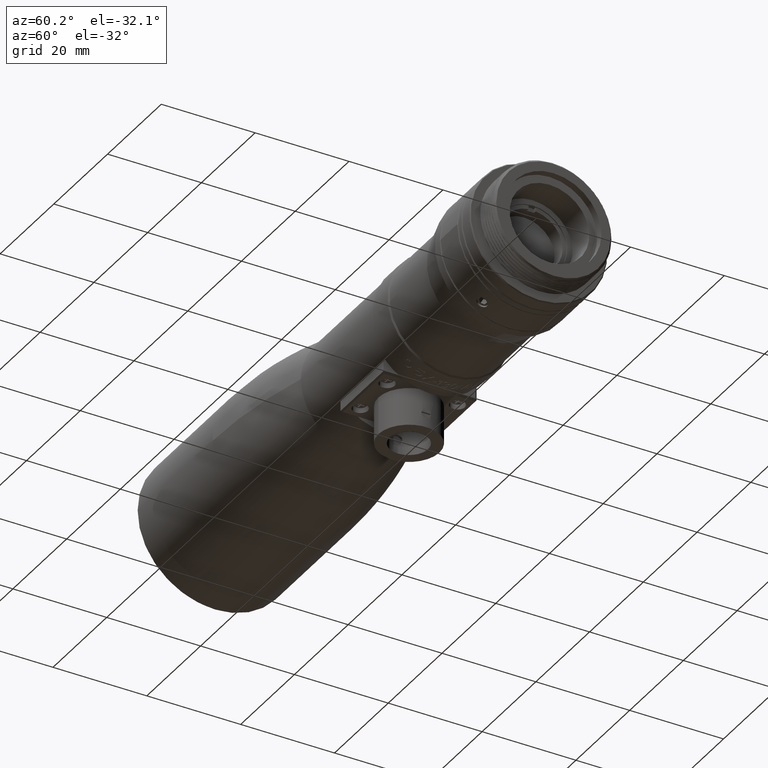
[diagram: clean part render]
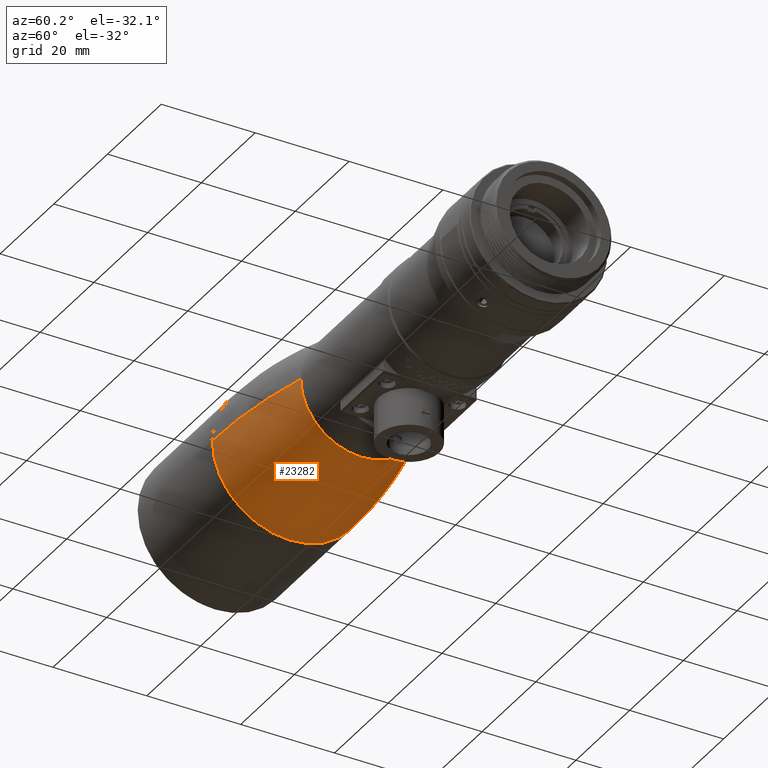
[diagram: same view with one face highlighted and labeled with its STEP entity id]
A machine part, auxiliary view. The second image highlights one B-rep face of the part: STEP entity #23282.
In plain terms, the highlighted face is a freeform B-spline surface patch.
Its self-contained STEP definition (entity closure, byte-faithful):
#20 = CARTESIAN_POINT ( 'NONE',  ( -8.756185135893478133, -15.32402583809649776, 0.2888167847728006499 ) ) ;
#272 = AXIS2_PLACEMENT_3D ( 'NONE', #15742, #10527, #25546 ) ;
#1800 = DIRECTION ( 'NONE',  ( 2.697324574236714523E-13, -8.992583322630788348E-06, 0.9999999999595667877 ) ) ;
#2226 = DIRECTION ( 'NONE',  ( 1.000000000000000000, 0.000000000000000000, -2.697785781550014780E-13 ) ) ;
#2235 = AXIS2_PLACEMENT_3D ( 'NONE', #19603, #1800, #29392 ) ;
#2468 = FACE_OUTER_BOUND ( 'NONE', #16575, .T. ) ;
#2543 = ORIENTED_EDGE ( 'NONE', *, *, #8457, .F. ) ;
#3807 = CIRCLE ( 'NONE', #2235, 104.3557142859954325 ) ;
#4131 = EDGE_CURVE ( 'NONE', #26897, #16132, #12127, .T. ) ;
#4274 = AXIS2_PLACEMENT_3D ( 'NONE', #21988, #2226, #9427 ) ;
#4435 = CARTESIAN_POINT ( 'NONE',  ( -17.73994872613297602, 16.68206852584769706, -9.497683224391783696 ) ) ;
#5786 = EDGE_CURVE ( 'NONE', #31032, #26897, #15229, .T. ) ;
#5858 = CARTESIAN_POINT ( 'NONE',  ( -26.80000000004445226, 0.000000000000000000, 0.000000000000000000 ) ) ;
#7204 = CARTESIAN_POINT ( 'NONE',  ( -17.73994872613033280, 16.49706600851910565, 0.3111480516158111609 ) ) ;
#7434 = ORIENTED_EDGE ( 'NONE', *, *, #21754, .T. ) ;
#7650 = VERTEX_POINT ( 'NONE', #29074 ) ;
#8457 = EDGE_CURVE ( 'NONE', #16132, #15035, #3807, .T. ) ;
#9207 = AXIS2_PLACEMENT_3D ( 'NONE', #18179, #15714, #10974 ) ;
#9427 = DIRECTION ( 'NONE',  ( -2.697785781550014780E-13, 0.000000000000000000, -1.000000000000000000 ) ) ;
#9661 = CARTESIAN_POINT ( 'NONE',  ( -8.756185135895927729, 15.49586962781681088, -8.822338835467260054 ) ) ;
#9697 = ORIENTED_EDGE ( 'NONE', *, *, #4131, .F. ) ;
#9825 = CARTESIAN_POINT ( 'NONE',  ( 1.206386617625262911E-11, 7.729632223316386330, -12.99994786825178572 ) ) ;
#9986 = CARTESIAN_POINT ( 'NONE',  ( 1.206385211230918476E-11, 8.767768979434767992E-05, -12.99999999968323650 ) ) ;
#10256 = CIRCLE ( 'NONE', #9207, 104.3557142859954325 ) ;
#10261 = CARTESIAN_POINT ( 'NONE',  ( 0.000000000000000000, 0.000000000000000000, -9.621682753383029286E-14 ) ) ;
#10527 = DIRECTION ( 'NONE',  ( 1.000000000000000000, 0.000000000000000000, 0.000000000000000000 ) ) ;
#10600 = AXIS2_PLACEMENT_3D ( 'NONE', #5858, #21528, #24450 ) ;
#10974 = DIRECTION ( 'NONE',  ( 0.000000000000000000, -0.9999999999595666766, -8.992583580296957294E-06 ) ) ;
#11742 = ORIENTED_EDGE ( 'NONE', *, *, #24541, .F. ) ;
#12094 = CARTESIAN_POINT ( 'NONE',  ( 1.563710902378246571E-11, 12.99768837034014268, 0.2451469497540064990 ) ) ;
#12127 = CIRCLE ( 'NONE', #14201, 12.99999999998296119 ) ;
#12417 = CARTESIAN_POINT ( 'NONE',  ( -17.73994872613297602, -16.68194041126498917, -9.497908245870599231 ) ) ;
#12584 = CARTESIAN_POINT ( 'NONE',  ( -17.73994872613486606, -9.810464486233753334, -16.50006616642043156 ) ) ;
#13177 = CARTESIAN_POINT ( 'NONE',  ( 1.368904832324280096E-11, 12.99999999947404028, 0.0001139622336825304023 ) ) ;
#13534 = CARTESIAN_POINT ( 'NONE',  ( -3.507121516010425443E-12, 0.000000000000000000, -12.99999999998304112 ) ) ;
#14201 = AXIS2_PLACEMENT_3D ( 'NONE', #10261, #20544, #18252 ) ;
#14396 = CARTESIAN_POINT ( 'NONE',  ( 1.563706172506344714E-11, -12.99769167591433572, 0.2449716255334038750 ) ) ;
#14879 = CARTESIAN_POINT ( 'NONE',  ( -17.73994872613486251, 0.0001112832216095584068, -16.49999999960362729 ) ) ;
#15035 = VERTEX_POINT ( 'NONE', #16422 ) ;
#15229 = CIRCLE ( 'NONE', #4274, 12.99999999998296119 ) ;
#15714 = DIRECTION ( 'NONE',  ( 2.698431476603614308E-13, -8.992583580296957294E-06, 0.9999999999595667877 ) ) ;
#15742 = CARTESIAN_POINT ( 'NONE',  ( -26.80000000004445226, 0.000000000000000000, 0.000000000000000000 ) ) ;
#16132 = VERTEX_POINT ( 'NONE', #13177 ) ;
#16422 = CARTESIAN_POINT ( 'NONE',  ( -26.79999958351570299, 16.49999999965815078, 7.418880885253349667E-05 ) ) ;
#16575 = EDGE_LOOP ( 'NONE', ( #11742, #29119, #7434, #2543, #9697, #17876 ) ) ;
#17151 = CARTESIAN_POINT ( 'NONE',  ( -8.756185135897686322, 9.113086143486363255, -15.32668584500434683 ) ) ;
#17876 = ORIENTED_EDGE ( 'NONE', *, *, #5786, .F. ) ;
#18179 = CARTESIAN_POINT ( 'NONE',  ( -26.80000000003840199, 87.85571428245971504, 0.0007900498606580300034 ) ) ;
#18252 = DIRECTION ( 'NONE',  ( -2.697785781550014780E-13, 0.000000000000000000, -1.000000000000000000 ) ) ;
#19455 = CARTESIAN_POINT ( 'NONE',  ( 1.206383804836572911E-11, -7.729456867936798758, -13.00005213111469970 ) ) ;
#19603 = CARTESIAN_POINT ( 'NONE',  ( -26.80000000003840199, -87.85571428245971504, -0.0007900498237524419343 ) ) ;
#19622 = CARTESIAN_POINT ( 'NONE',  ( -8.756185135893478133, 15.32402194088876435, 0.2890234886208847276 ) ) ;
#19946 = CARTESIAN_POINT ( 'NONE',  ( 1.355221428347787801E-11, 13.14344792944745954, -7.483023146489498068 ) ) ;
#20544 = DIRECTION ( 'NONE',  ( 1.000000000000000000, 0.000000000000000000, -2.697785781550014780E-13 ) ) ;
#21528 = DIRECTION ( 'NONE',  ( 1.000000000000000000, 0.000000000000000000, 0.000000000000000000 ) ) ;
#21666 =( BOUNDED_SURFACE ( )  B_SPLINE_SURFACE ( 3, 3, ( 
 ( #30084, #22230, #24499, #32045, #22548, #24349, #27274 ),
 ( #29412, #12417, #12584, #14879, #29587, #4435, #7204 ),
 ( #20, #22058, #27444, #22393, #17151, #9661, #19622 ),
 ( #14396, #32207, #19455, #9986, #9825, #19946, #12094 ) ),
 .UNSPECIFIED., .F., .F., .T. ) 
 B_SPLINE_SURFACE_WITH_KNOTS ( ( 4, 4 ),
 ( 4, 3, 4 ),
 ( 0.01928601221915650019, 0.9807118293951120336 ),
 ( 0.000000000000000000, 0.5000000000000000000, 1.000000000000000000 ),
 .UNSPECIFIED. ) 
 GEOMETRIC_REPRESENTATION_ITEM ( )  RATIONAL_B_SPLINE_SURFACE ( (
 ( 0.9996555249964440559, 0.7999978850031780331, 0.7999978850031780331, 0.9996555249964440559, 0.7999978850031780331, 0.7999978850031780331, 0.9996555249964440559),
 ( 0.9940439575587189935, 0.7955070959568720790, 0.7955070959568720790, 0.9940439575587189935, 0.7955070959568720790, 0.7955070959568720790, 0.9940439575587189935),
 ( 0.9940439449608670097, 0.7955070858751449592, 0.7955070858751449592, 0.9940439449608670097, 0.7955070858751449592, 0.7955070858751449592, 0.9940439449608670097),
 ( 0.9996554872028889926, 0.7999978547579950083, 0.7999978547579950083, 0.9996554872028889926, 0.7999978547579950083, 0.7999978547579950083, 0.9996554872028889926) ) ) 
 REPRESENTATION_ITEM ( '' )  SURFACE ( )  );
#21754 = EDGE_CURVE ( 'NONE', #31488, #15035, #28430, .T. ) ;
#21988 = CARTESIAN_POINT ( 'NONE',  ( 0.000000000000000000, 0.000000000000000000, -9.621682753383029286E-14 ) ) ;
#22058 = CARTESIAN_POINT ( 'NONE',  ( -8.756185135895927729, -15.49575062297823536, -8.822547856518475839 ) ) ;
#22230 = CARTESIAN_POINT ( 'NONE',  ( -26.80000000004253735, -16.68194041126481508, -9.497908245868067922 ) ) ;
#22393 = CARTESIAN_POINT ( 'NONE',  ( -8.756185135897695204, 0.0001033702919612289236, -15.32674730694866838 ) ) ;
#22490 = CARTESIAN_POINT ( 'NONE',  ( -26.80000000004445226, 0.000000000000000000, -16.50000000000000000 ) ) ;
#22548 = CARTESIAN_POINT ( 'NONE',  ( -26.80000000004447358, 9.810687052676883013, -16.49993383278422598 ) ) ;
#23282 = ADVANCED_FACE ( 'NONE', ( #2468 ), #21666, .F. ) ;
#24349 = CARTESIAN_POINT ( 'NONE',  ( -26.80000000004253735, 16.68206852584757272, -9.497683224389257717 ) ) ;
#24450 = DIRECTION ( 'NONE',  ( 0.000000000000000000, 0.000000000000000000, 1.000000000000000000 ) ) ;
#24499 = CARTESIAN_POINT ( 'NONE',  ( -26.80000000004447358, -9.810464486233662740, -16.50006616641785584 ) ) ;
#24541 = EDGE_CURVE ( 'NONE', #7650, #31032, #10256, .T. ) ;
#25546 = DIRECTION ( 'NONE',  ( 0.000000000000000000, 0.000000000000000000, 1.000000000000000000 ) ) ;
#26897 = VERTEX_POINT ( 'NONE', #13534 ) ;
#26966 = EDGE_CURVE ( 'NONE', #7650, #31488, #30977, .T. ) ;
#27274 = CARTESIAN_POINT ( 'NONE',  ( -26.80000000003991545, 16.49706600851899907, 0.3111480516182521527 ) ) ;
#27444 = CARTESIAN_POINT ( 'NONE',  ( -8.756185135897686322, -9.112879402902438031, -15.32680876889301480 ) ) ;
#28430 = CIRCLE ( 'NONE', #272, 16.50000000000000000 ) ;
#29074 = CARTESIAN_POINT ( 'NONE',  ( -26.80000000004109850, -16.49999999970120257, -6.800641048641789988E-05 ) ) ;
#29119 = ORIENTED_EDGE ( 'NONE', *, *, #26966, .T. ) ;
#29392 = DIRECTION ( 'NONE',  ( 0.000000000000000000, -0.9999999999595666766, -8.992583322630786654E-06 ) ) ;
#29412 = CARTESIAN_POINT ( 'NONE',  ( -17.73994872613033280, -16.49707020405559987, 0.3109255247205350292 ) ) ;
#29587 = CARTESIAN_POINT ( 'NONE',  ( -17.73994872613486606, 9.810687052676966502, -16.49993383278681236 ) ) ;
#30084 = CARTESIAN_POINT ( 'NONE',  ( -26.80000000003991545, -16.49707020405545776, 0.3109255247229775754 ) ) ;
#30592 = CARTESIAN_POINT ( 'NONE',  ( 1.410113344907664034E-11, -12.99999999947376139, -0.0001139606293408844054 ) ) ;
#30977 = CIRCLE ( 'NONE', #10600, 16.50000000000000000 ) ;
#31032 = VERTEX_POINT ( 'NONE', #30592 ) ;
#31488 = VERTEX_POINT ( 'NONE', #22490 ) ;
#32045 = CARTESIAN_POINT ( 'NONE',  ( -26.80000000004446647, 0.0001112832216091247395, -16.49999999960103736 ) ) ;
#32207 = CARTESIAN_POINT ( 'NONE',  ( 1.355216645452809610E-11, -13.14334699068523626, -7.483200436139558320 ) ) ;